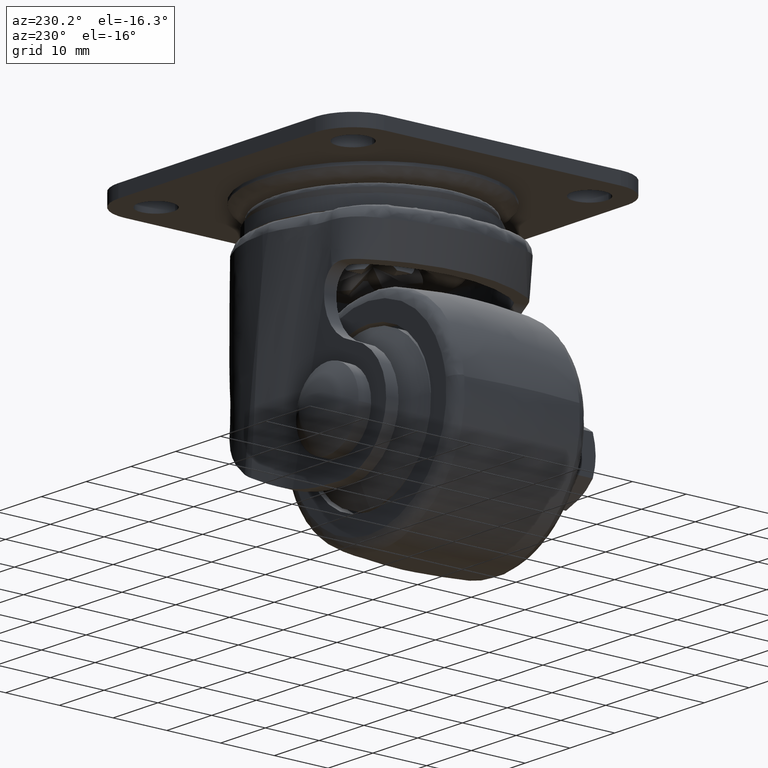
[diagram: clean part render]
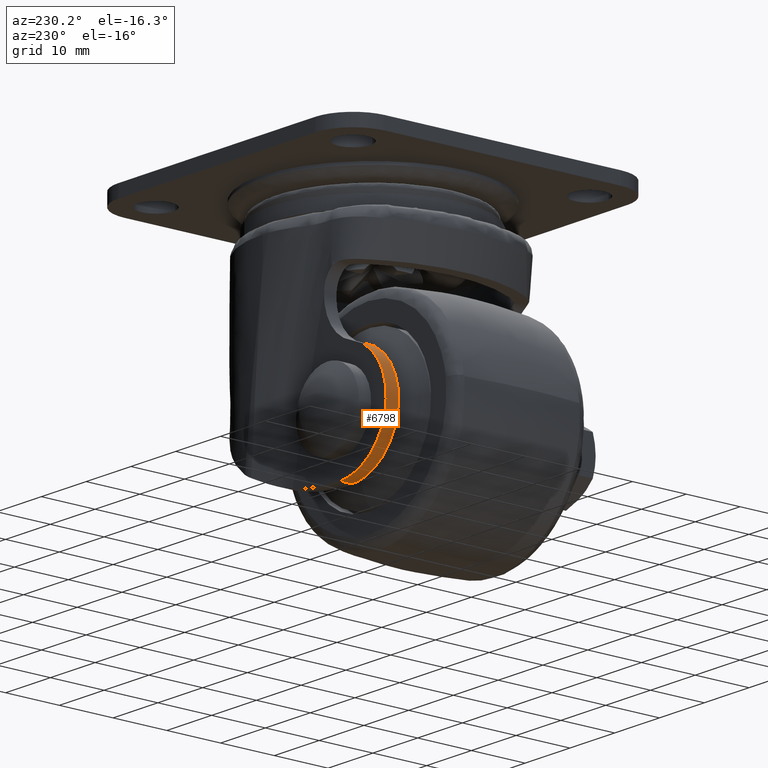
[diagram: same view with one face highlighted and labeled with its STEP entity id]
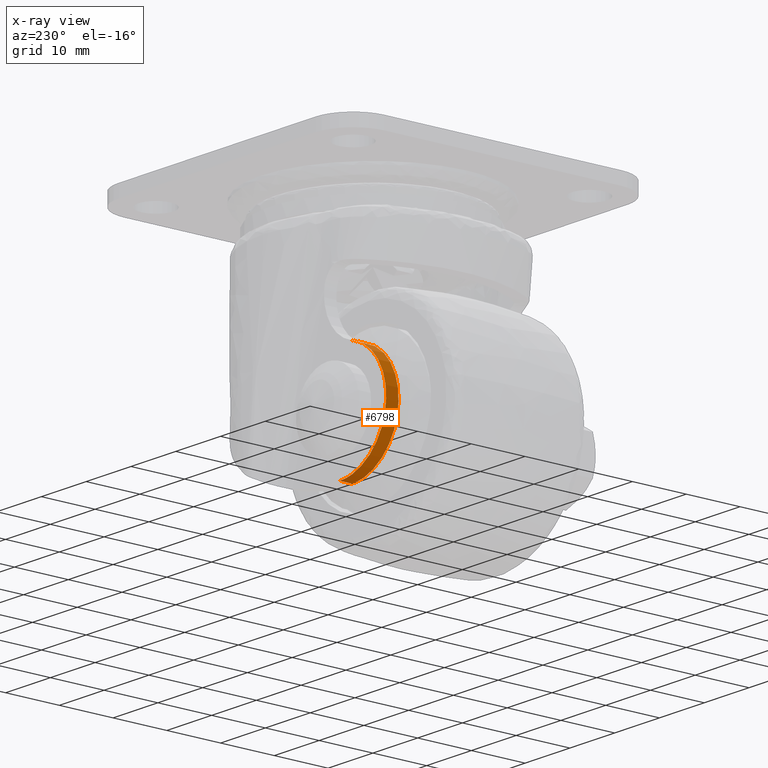
[diagram: x-ray of the same camera — body ghosted, the highlighted face saturated]
A machine part, auxiliary view. The second image highlights one B-rep face of the part: STEP entity #6798.
The next image is the same camera in x-ray: the body ghosted, the highlighted face saturated — about 0% of this face is hidden behind the body in this view.
In plain terms, the highlighted face is a freeform B-spline surface patch.
Its self-contained STEP definition (entity closure, byte-faithful):
#6091=CARTESIAN_POINT('',(-16.747467474750199,15.500000000000000,-30.021325924761850));
#6092=VERTEX_POINT('',#6091);
#6106=CARTESIAN_POINT('',(-14.0,15.500000000000000,-50.350000000000001));
#6107=VERTEX_POINT('',#6106);
#6108=CARTESIAN_POINT('',(-16.747467474750199,15.500000000000000,-30.021325924761850));
#6109=CARTESIAN_POINT('',(-25.468223450911267,15.500000000000002,-32.422446567785201));
#6110=CARTESIAN_POINT('',(-24.256748266736100,15.500000000000000,-41.386223283892598));
#6111=CARTESIAN_POINT('',(-23.045273082560943,15.500000000000002,-50.350000000000001));
#6112=CARTESIAN_POINT('',(-14.0,15.500000000000000,-50.350000000000001));
#6120=(BOUNDED_CURVE()B_SPLINE_CURVE(2,(#6108,#6109,#6110,#6111,#6112),.UNSPECIFIED.,.F.,.U.)B_SPLINE_CURVE_WITH_KNOTS((3,2,3),(0.0,0.500000000000000,1.0),.UNSPECIFIED.)CURVE()GEOMETRIC_REPRESENTATION_ITEM()RATIONAL_B_SPLINE_CURVE((1.0,0.752972315826159,1.0,0.752972315826159,1.0))REPRESENTATION_ITEM(''));
#6121=EDGE_CURVE('',#6092,#6107,#6120,.T.);
#6621=CARTESIAN_POINT('',(-14.0,17.800000000000001,-50.350000000000001));
#6622=VERTEX_POINT('',#6621);
#6636=CARTESIAN_POINT('',(-16.747467474750199,17.800000000000001,-30.021325924761850));
#6637=VERTEX_POINT('',#6636);
#6638=CARTESIAN_POINT('',(-16.747467474750199,17.800000000000001,-30.021325924761850));
#6639=CARTESIAN_POINT('',(-25.468223450911267,17.799999999999994,-32.422446567785201));
#6640=CARTESIAN_POINT('',(-24.256748266736100,17.800000000000001,-41.386223283892598));
#6641=CARTESIAN_POINT('',(-23.045273082560943,17.799999999999994,-50.350000000000001));
#6642=CARTESIAN_POINT('',(-14.0,17.800000000000001,-50.350000000000001));
#6650=(BOUNDED_CURVE()B_SPLINE_CURVE(2,(#6638,#6639,#6640,#6641,#6642),.UNSPECIFIED.,.F.,.U.)B_SPLINE_CURVE_WITH_KNOTS((3,2,3),(0.0,0.500000000000000,1.0),.UNSPECIFIED.)CURVE()GEOMETRIC_REPRESENTATION_ITEM()RATIONAL_B_SPLINE_CURVE((1.0,0.752972315826159,1.0,0.752972315826159,1.0))REPRESENTATION_ITEM(''));
#6651=EDGE_CURVE('',#6637,#6622,#6650,.T.);
#6761=CARTESIAN_POINT('',(-16.747467474750199,15.500000000000000,-30.021325924761850));
#6762=CARTESIAN_POINT('',(-16.747467474750199,17.800000000000001,-30.021325924761850));
#6763=QUASI_UNIFORM_CURVE('',1,(#6761,#6762),.UNSPECIFIED.,.F.,.U.);
#6764=EDGE_CURVE('',#6092,#6637,#6763,.T.);
#6770=CARTESIAN_POINT('',(-16.416159515908610,15.442500000000001,-29.935971323884051));
#6771=CARTESIAN_POINT('',(-16.416159515908610,17.858937500000000,-29.935971323884051));
#6772=CARTESIAN_POINT('',(-25.719251931885733,15.442499999999997,-32.169446206719449));
#6773=CARTESIAN_POINT('',(-25.719251931885733,17.858937500000003,-32.169446206719449));
#6774=CARTESIAN_POINT('',(-24.222574325159680,15.442500000000001,-41.619096713166378));
#6775=CARTESIAN_POINT('',(-24.222574325159680,17.858937500000000,-41.619096713166378));
#6776=CARTESIAN_POINT('',(-22.725896718433624,15.442499999999997,-51.068747219613300));
#6777=CARTESIAN_POINT('',(-22.725896718433624,17.858937500000003,-51.068747219613300));
#6778=CARTESIAN_POINT('',(-13.187948359216820,15.442500000000001,-50.318094404137867));
#6779=CARTESIAN_POINT('',(-13.187948359216820,17.858937500000000,-50.318094404137867));
#6787=(BOUNDED_SURFACE()B_SPLINE_SURFACE(1,2,((#6770,#6772,#6774,#6776,#6778),(#6771,#6773,#6775,#6777,#6779)),.UNSPECIFIED.,.F.,.F.,.U.)B_SPLINE_SURFACE_WITH_KNOTS((2,2),(3,2,3),(0.0,2.416437500000003),(0.0,16.203647656171949,32.407295312343891),.UNSPECIFIED.)GEOMETRIC_REPRESENTATION_ITEM()RATIONAL_B_SPLINE_SURFACE(((1.0,0.734322509435685,1.0,0.734322509435685,1.0),(1.0,0.734322509435685,1.0,0.734322509435685,1.0)))REPRESENTATION_ITEM('')SURFACE());
#6788=CARTESIAN_POINT('',(-14.0,15.500000000000000,-50.350000000000001));
#6789=CARTESIAN_POINT('',(-14.0,17.800000000000001,-50.350000000000001));
#6790=QUASI_UNIFORM_CURVE('',1,(#6788,#6789),.UNSPECIFIED.,.F.,.U.);
#6791=EDGE_CURVE('',#6107,#6622,#6790,.T.);
#6792=ORIENTED_EDGE('',*,*,#6791,.F.);
#6793=ORIENTED_EDGE('',*,*,#6121,.F.);
#6794=ORIENTED_EDGE('',*,*,#6764,.T.);
#6795=ORIENTED_EDGE('',*,*,#6651,.T.);
#6796=EDGE_LOOP('',(#6792,#6793,#6794,#6795));
#6797=FACE_OUTER_BOUND('',#6796,.T.);
#6798=ADVANCED_FACE('',(#6797),#6787,.T.);